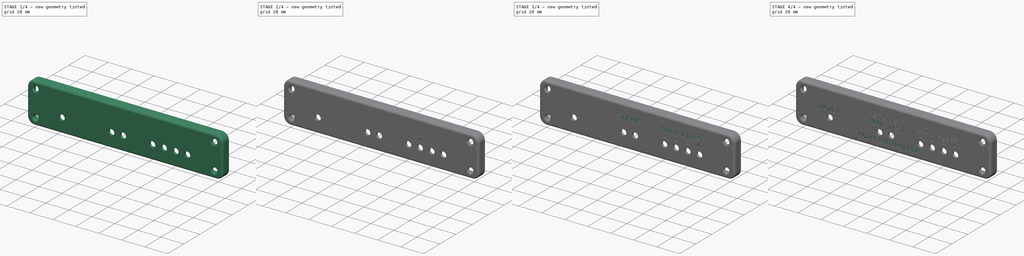
[diagram: build sequence overview — one tinted view per stage of 4, left to right]
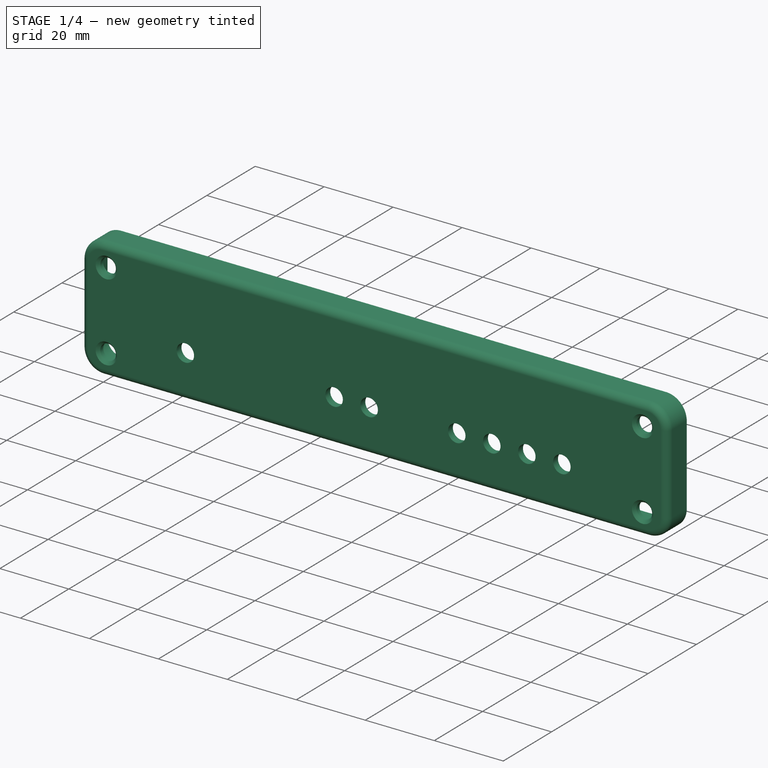
[diagram: stage 1 of 4 — iso view after this stage's code; geometry added in this stage tinted green]
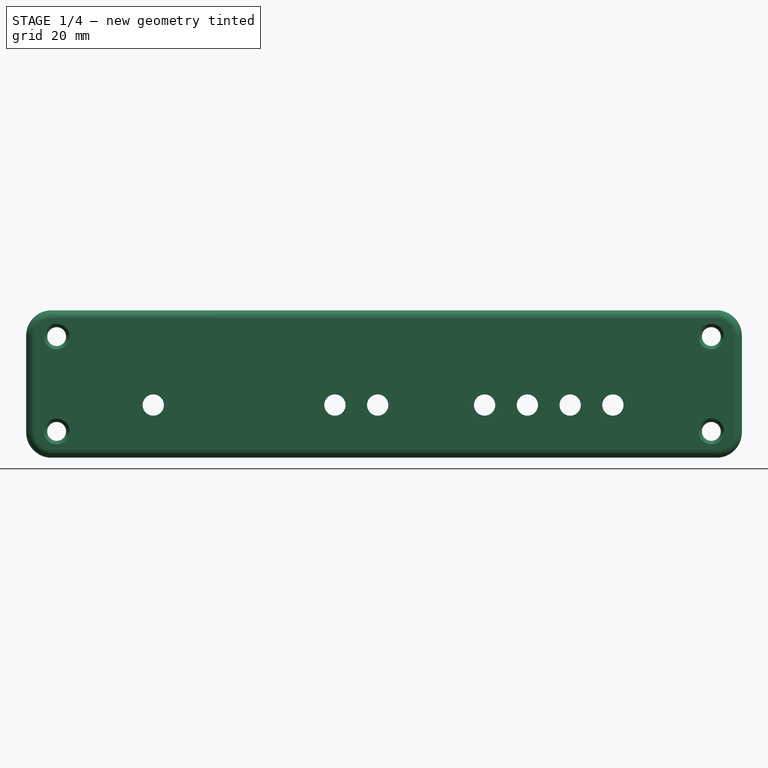
[diagram: stage 1 of 4 — front view after this stage's code; geometry added in this stage tinted green]
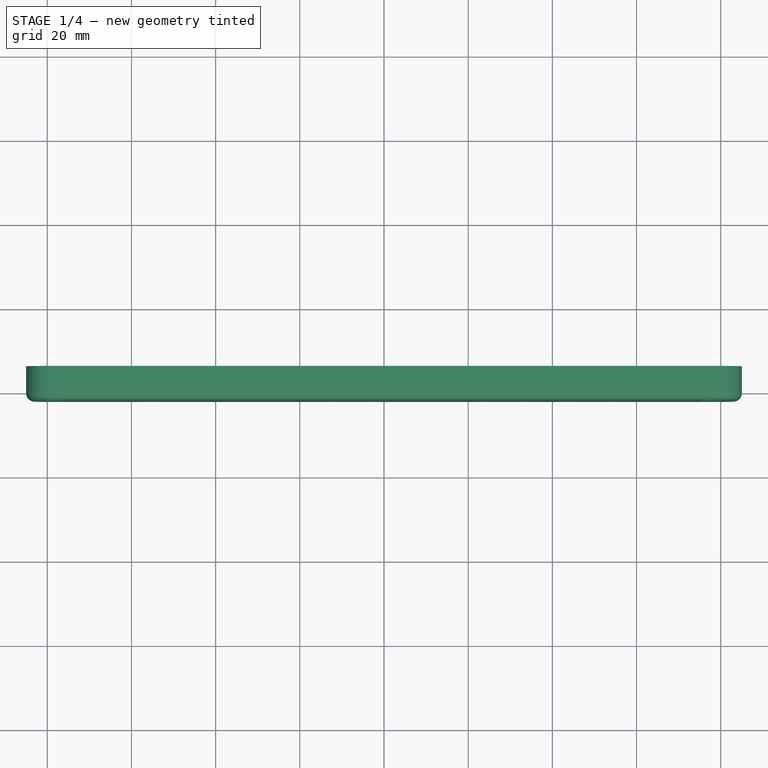
[diagram: stage 1 of 4 — top view after this stage's code; geometry added in this stage tinted green]
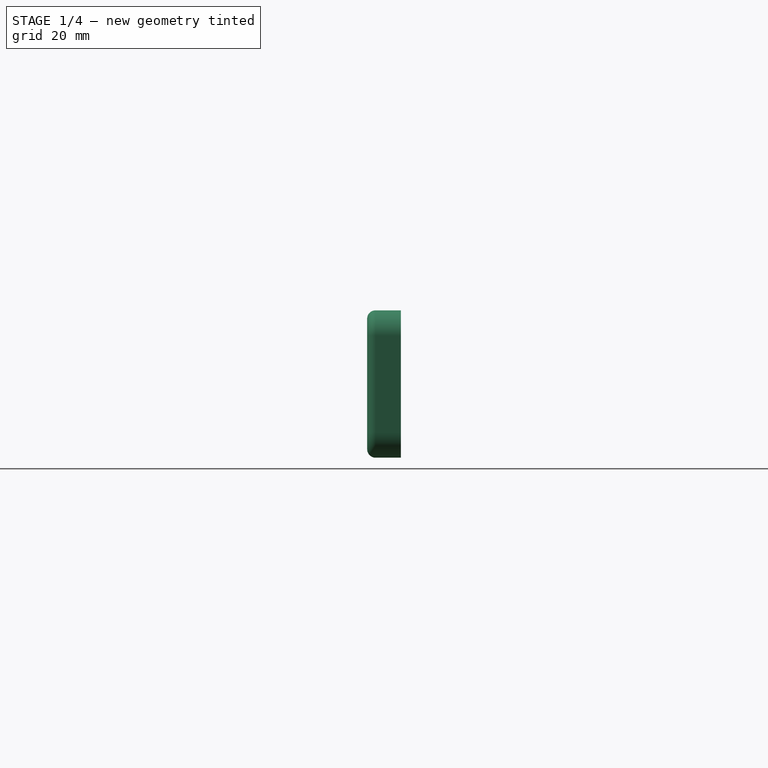
[diagram: stage 1 of 4 — right view after this stage's code; geometry added in this stage tinted green]
FCSTD DOCUMENT  (FreeCAD 0.21R33771 (Git))
Label: Hammond_160mm_Extrusion_Front_Panel
License: All rights reserved
LicenseURL: http://en.wikipedia.org/wiki/All_rights_reserved
objects: PartDesign::Pocket×11, Part::Part2DObjectPython×10, Sketcher::SketchObject×3, PartDesign::Pad×1, PartDesign::Thickness×1, PartDesign::Hole×1, PartDesign::Body×1
note: 42 computed .brp shape members not serialized (recipe doc carries the construction recipe); baked Part::Feature solids carry a one-line shape summary decoded from their .brp

FEATURE [Sketcher::SketchObject] Sketch  label="EndPanelSketch"
  FullyConstrained = true
  MapMode = 5
  Placement = pos=(0,0,0) rot=(1,0,0;1.5708rad)
  Support = -> [XZ_Plane]
  sketch-geometry (10):
    g0: ArcOfCircle CenterX=-79 CenterY=11.5 CenterZ=0 NormalX=0 NormalY=0 NormalZ=1 AngleXU=0 Radius=4 StartAngle=1.5708 EndAngle=3.14159
    g1: LineSegment StartX=-79 StartY=15.5 StartZ=0 EndX=79 EndY=15.5 EndZ=0
    g2: ArcOfCircle CenterX=79 CenterY=11.5 CenterZ=0 NormalX=0 NormalY=0 NormalZ=1 AngleXU=0 Radius=4 StartAngle=2.1e-14 EndAngle=1.5708
    g3: LineSegment StartX=83 StartY=11.5 StartZ=0 EndX=83 EndY=-11.5 EndZ=0
    g4: ArcOfCircle CenterX=79 CenterY=-11.5 CenterZ=0 NormalX=0 NormalY=0 NormalZ=1 AngleXU=0 Radius=4 StartAngle=4.71239 EndAngle=6.28319
    g5: LineSegment StartX=79 StartY=-15.5 StartZ=0 EndX=-79 EndY=-15.5 EndZ=0
    g6: ArcOfCircle CenterX=-79 CenterY=-11.5 CenterZ=0 NormalX=0 NormalY=0 NormalZ=1 AngleXU=0 Radius=4 StartAngle=3.14159 EndAngle=4.71239
    g7: LineSegment StartX=-83 StartY=-11.5 StartZ=0 EndX=-83 EndY=11.5 EndZ=0
    g8: GeomPoint X=-83 Y=15.5 Z=0
    g9: GeomPoint X=83 Y=-15.5 Z=0
  constraints (23):
    c: Tangent(g0,g1) = 1.5708
    c: Tangent(g1,g2) = 1.5708
    c: Tangent(g2,g3) = 1.5708
    c: Tangent(g3,g4) = 1.5708
    c: Tangent(g4,g5) = 1.5708
    c: Tangent(g5,g6) = 1.5708
    c: Tangent(g6,g7) = 1.5708
    c: Tangent(g7,g0) = 1.5708
    c: Horizontal(g1)
    c: Horizontal(g5)
    c: Vertical(g3)
    c: Vertical(g7)
    c: Equal(g0,g2)
    c: Equal(g2,g4)
    c: Equal(g4,g6)
    c: PointOnObject(g8,g1)
    c: PointOnObject(g8,g7)
    c: PointOnObject(g9,g3)
    c: PointOnObject(g9,g5)
    c: Symmetric(g4,g0,g-1)
    c: DistanceX(g0,g2) = 166
    c: DistanceY(g5,g0) = 31
    c: Radius(g0) = 4
FEATURE [PartDesign::Pad] Pad  label="EndPanelPad"
  Direction = (0,-1,-2e-16)
  Length = 6
  Length2 = 10
  Placement = pos=(0,0,0) rot=(1,0,0;1.5708rad)
  Profile = -> Sketch
  ReferenceAxis = -> Sketch [N_Axis]
  Reversed = true
  Type = 0
FEATURE [PartDesign::Thickness] Thickness
  Base = -> Pad [Face10]
  BaseFeature = -> Pad
  Intersection = false
  Join = 0
  Mode = 0
  SupportTransform = false
  Value = 2
FEATURE [Sketcher::SketchObject] Sketch001  label="LEDHolesSketch"
  FullyConstrained = false
  MapMode = 5
  Placement = pos=(0,-2,-4e-16) rot=(1,0,0;1.5708rad)
  Support = -> [Thickness]
  sketch-geometry (8):
    g0: Circle CenterX=-1.5 CenterY=-5 CenterZ=0 NormalX=0 NormalY=0 NormalZ=1 AngleXU=0 Radius=2.525
    g1: Circle CenterX=-11.66 CenterY=-5 CenterZ=0 NormalX=0 NormalY=0 NormalZ=1 AngleXU=0 Radius=2.525
    g2: Circle CenterX=-54.81 CenterY=-5 CenterZ=0 NormalX=0 NormalY=0 NormalZ=1 AngleXU=0 Radius=2.525
    g3: Circle CenterX=23.9 CenterY=-5 CenterZ=0 NormalX=0 NormalY=0 NormalZ=1 AngleXU=0 Radius=2.525
    g4: Circle CenterX=54.38 CenterY=-5 CenterZ=0 NormalX=0 NormalY=0 NormalZ=1 AngleXU=0 Radius=2.525
    g5: Circle CenterX=34.06 CenterY=-5 CenterZ=0 NormalX=0 NormalY=0 NormalZ=1 AngleXU=0 Radius=2.525
    g6: Circle CenterX=44.22 CenterY=-5 CenterZ=0 NormalX=0 NormalY=0 NormalZ=1 AngleXU=0 Radius=2.525
    g7: LineSegment StartX=-54.81 StartY=-5 StartZ=0 EndX=54.38 EndY=-5 EndZ=0
  constraints (23):
    c: Diameter(g0) = 5.05
    c: DistanceX(g0,g-1) = 1.5
    c: Equal(g1,g0)
    c: DistanceX(g1,g0) = 10.16
    c: Equal(g2,g0)
    c: Equal(g3,g4)
    c: Equal(g4,g5)
    c: Equal(g5,g6)
    c: Equal(g6,g0)
    c: DistanceX(g0,g3) = 25.4
    c: DistanceX(g3,g5) = 10.16
    c: DistanceX(g6,g4) = 10.16
    c: DistanceX(g5,g6) = 10.16
    c: DistanceX(g2,g1) = 43.15
    c: DistanceY(g1,g-1) = 5
    c: Coincident(g7,g2)
    c: Horizontal(g7)
    c: PointOnObject(g4,g7)
    c: PointOnObject(g6,g7)
    c: PointOnObject(g5,g7)
    c: PointOnObject(g3,g7)
    c: PointOnObject(g0,g7)
    c: PointOnObject(g1,g7)
FEATURE [Sketcher::SketchObject] Sketch002  label="EndPanelHoleSketch"
  FullyConstrained = false
  MapMode = 5
  Placement = pos=(0,-2,-4e-16) rot=(1,0,0;1.5708rad)
  Support = -> [Thickness]
  sketch-geometry (8):
    g0: Circle CenterX=-77.76 CenterY=11.26 CenterZ=0 NormalX=0 NormalY=0 NormalZ=1 AngleXU=0 Radius=2.25
    g1: Circle CenterX=77.76 CenterY=11.26 CenterZ=0 NormalX=0 NormalY=0 NormalZ=1 AngleXU=0 Radius=2.25
    g2: LineSegment StartX=-77.76 StartY=11.26 StartZ=0 EndX=77.7549 EndY=11.26 EndZ=0
    g3: LineSegment StartX=77.7549 StartY=11.26 StartZ=0 EndX=77.7549 EndY=-11.26 EndZ=0
    g4: LineSegment StartX=77.7549 StartY=-11.26 StartZ=0 EndX=-77.76 EndY=-11.26 EndZ=0
    g5: LineSegment StartX=-77.76 StartY=-11.26 StartZ=0 EndX=-77.76 EndY=11.26 EndZ=0
    g6: Circle CenterX=-77.76 CenterY=-11.26 CenterZ=0 NormalX=0 NormalY=0 NormalZ=1 AngleXU=0 Radius=2.25
    g7: Circle CenterX=77.7549 CenterY=-11.26 CenterZ=0 NormalX=0 NormalY=0 NormalZ=1 AngleXU=0 Radius=2.25
  constraints (18):
    c: DistanceX(g0,g1) = 155.52
    c: Symmetric(g0,g1,g-2)
    c: Coincident(g2,g3)
    c: Coincident(g3,g4)
    c: Coincident(g4,g5)
    c: Coincident(g5,g2)
    c: Horizontal(g2)
    c: Horizontal(g4)
    c: Vertical(g3)
    c: Coincident(g2,g0)
    c: DistanceY(g4,g0) = 22.52
    c: Symmetric(g0,g4,g-1)
    c: Coincident(g6,g4)
    c: Coincident(g7,g3)
    c: Equal(g0,g6)
    c: Equal(g6,g7)
    c: Equal(g7,g1)
    c: Diameter(g0) = 4.5
FEATURE [PartDesign::Hole] Hole  label="EndPanelHoles"
  BaseFeature = -> Thickness
  CustomThreadClearance = 0
  Depth = 2
  DepthType = 0
  Diameter = 4.5
  DrillForDepth = false
  DrillPoint = 1
  DrillPointAngle = 118
  HoleCutCountersinkAngle = 90
  HoleCutCustomValues = false
  HoleCutDepth = 0
  HoleCutDiameter = 6.1
  HoleCutType = 2
  ModelThread = false
  Profile = -> Sketch002
  Tapered = false
  TaperedAngle = 90
  ThreadClass = 0
  ThreadDepth = 2
  ThreadDepthType = 0
  ThreadDirection = 0
  ThreadFit = 0
  ThreadSize = 11
  ThreadType = 1
  Threaded = false
  UseCustomThreadClearance = false
FEATURE [PartDesign::Pocket] Pocket  label="LEDHolesPocket"
  BaseFeature = -> Hole
  Direction = (0,1,2e-16)
  Length = 5.05
  Length2 = 5
  Profile = -> Sketch001
  ReferenceAxis = -> Sketch001 [N_Axis]
  Type = 0
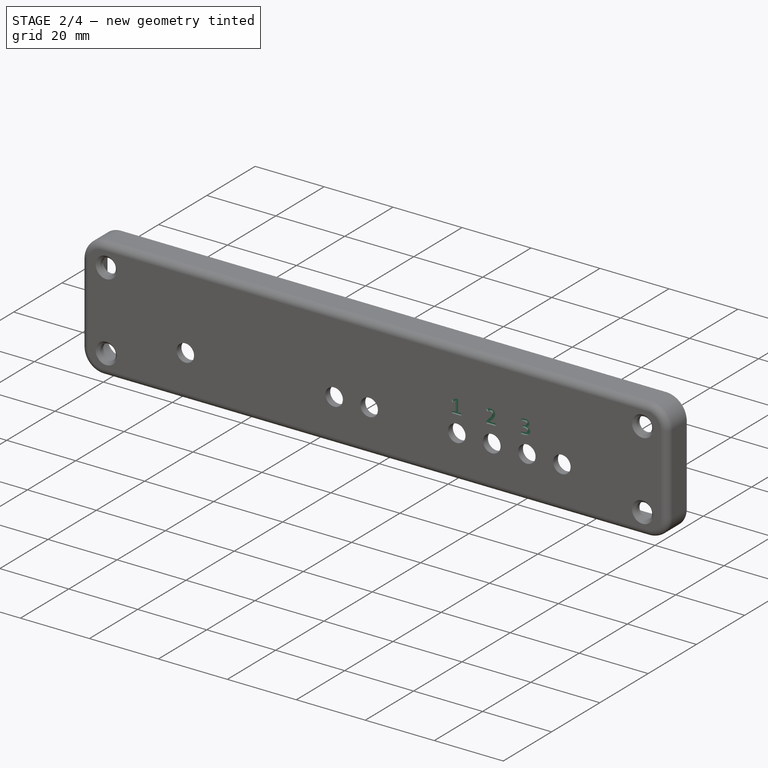
[diagram: stage 2 of 4 — iso view after this stage's code; geometry added in this stage tinted green]
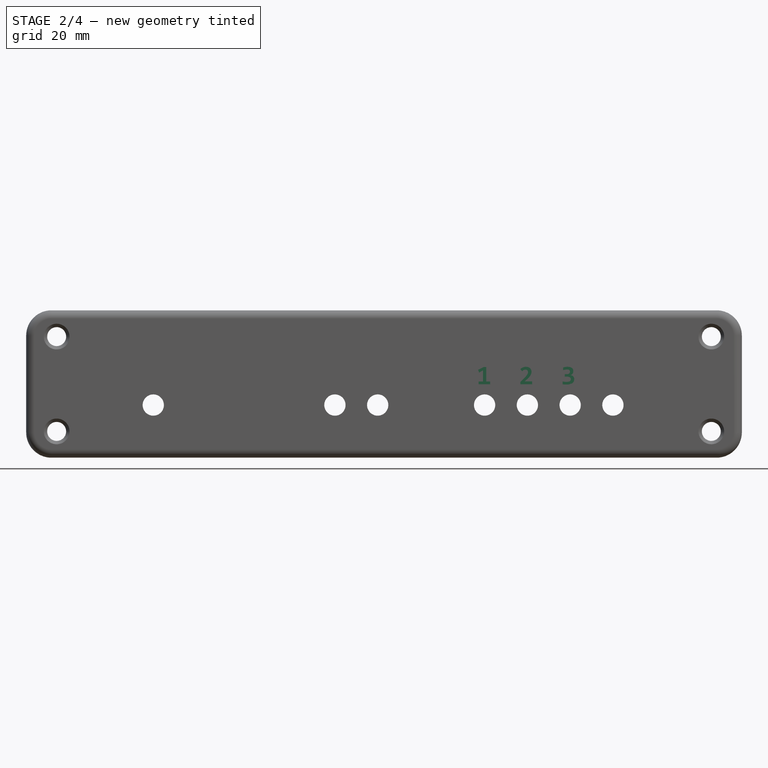
[diagram: stage 2 of 4 — front view after this stage's code; geometry added in this stage tinted green]
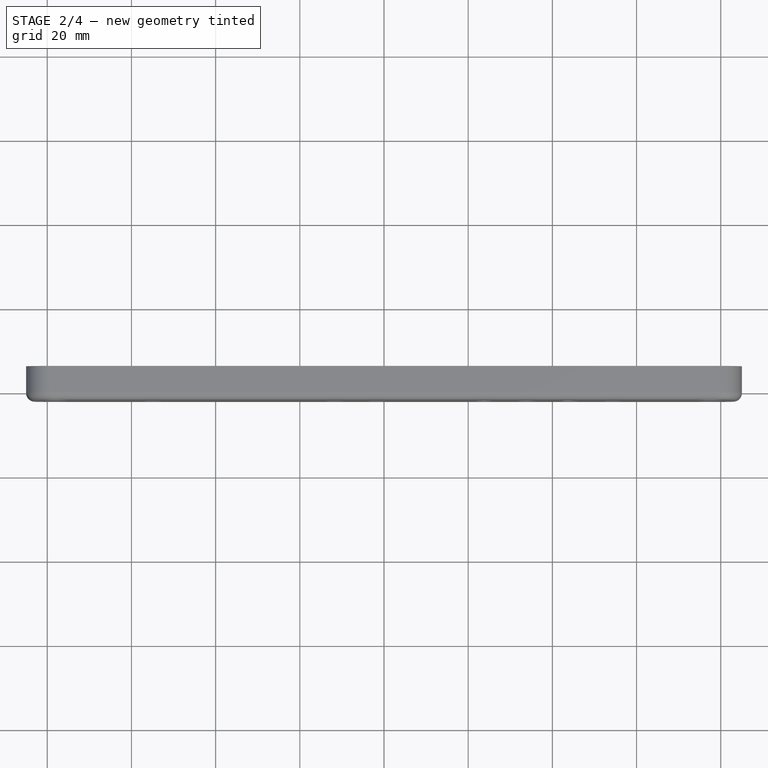
[diagram: stage 2 of 4 — top view after this stage's code; geometry added in this stage tinted green]
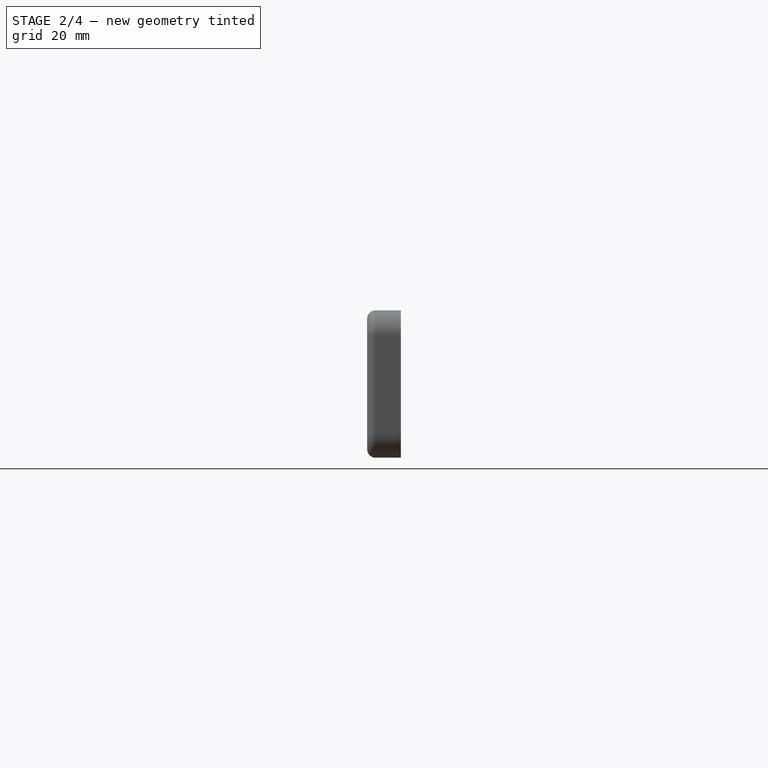
[diagram: stage 2 of 4 — right view after this stage's code; geometry added in this stage tinted green]
FEATURE [Part::Part2DObjectPython] ShapeString001  label="ShapeString3"  # Draft 2D object (typed FeaturePython)
  FontFile = <path>
  MakeFace = true
  Placement = pos=(-17,-2,5) rot=(1,0,0;1.5708rad)
  Size = 5
  String = STATUS
  Tracking = 0
FEATURE [Part::Part2DObjectPython] ShapeString002  label="ShapeString1"  # Draft 2D object (typed FeaturePython)
  FontFile = <path>
  MakeFace = true
  Placement = pos=(-20.5,-2,-0.07) rot=(1,0,0;1.5708rad)
  Size = 5
  String = MCU
  Tracking = 0
FEATURE [Part::Part2DObjectPython] ShapeString003  label="ShapeString2"  # Draft 2D object (typed FeaturePython)
  FontFile = <path>
  MakeFace = true
  Placement = pos=(-4,-2,-0.07) rot=(1,0,0;1.5708rad)
  Size = 5
  String = TEST
  Tracking = 0
FEATURE [Part::Part2DObjectPython] ShapeString004  label="L1"  # Draft 2D object (typed FeaturePython)
  FontFile = <path>
  MakeFace = true
  Placement = pos=(22,-2,-0.07) rot=(1,0,0;1.5708rad)
  Size = 5
  String = 1
  Tracking = 0
FEATURE [Part::Part2DObjectPython] ShapeString005  label="L2"  # Draft 2D object (typed FeaturePython)
  FontFile = <path>
  MakeFace = true
  Placement = pos=(32,-2,-0.07) rot=(1,0,0;1.5708rad)
  Size = 5
  String = 2
  Tracking = 0
FEATURE [Part::Part2DObjectPython] ShapeString006  label="L3"  # Draft 2D object (typed FeaturePython)
  FontFile = <path>
  MakeFace = true
  Placement = pos=(42,-2,-0.07) rot=(1,0,0;1.5708rad)
  Size = 5
  String = 3
  Tracking = 0
FEATURE [Part::Part2DObjectPython] ShapeString007  label="L4"  # Draft 2D object (typed FeaturePython)
  FontFile = <path>
  MakeFace = true
  Placement = pos=(52,-2,-0.07) rot=(1,0,0;1.5708rad)
  Size = 5
  String = 4
  Tracking = 0
FEATURE [Part::Part2DObjectPython] ShapeString008  label="ShapeString4"  # Draft 2D object (typed FeaturePython)
  FontFile = <path>
  MakeFace = true
  Placement = pos=(21,-2,5) rot=(1,0,0;1.5708rad)
  Size = 5
  String = COIN LINES
  Tracking = 0
FEATURE [PartDesign::Pocket] Pocket001
  BaseFeature = -> Pocket
  Direction = (0,1,-2e-16)
  Length = 0.5
  Length2 = 5
  Profile = -> ShapeString004
  ReferenceAxis = -> ShapeString004 [N_Axis]
  Type = 0
FEATURE [PartDesign::Pocket] Pocket002
  BaseFeature = -> Pocket001
  Direction = (0,1,-2e-16)
  Length = 0.5
  Length2 = 5
  Profile = -> ShapeString006
  ReferenceAxis = -> ShapeString006 [N_Axis]
  Type = 0
FEATURE [PartDesign::Pocket] Pocket003
  BaseFeature = -> Pocket002
  Direction = (0,1,-2e-16)
  Length = 0.5
  Length2 = 5
  Profile = -> ShapeString005
  ReferenceAxis = -> ShapeString005 [N_Axis]
  Type = 0
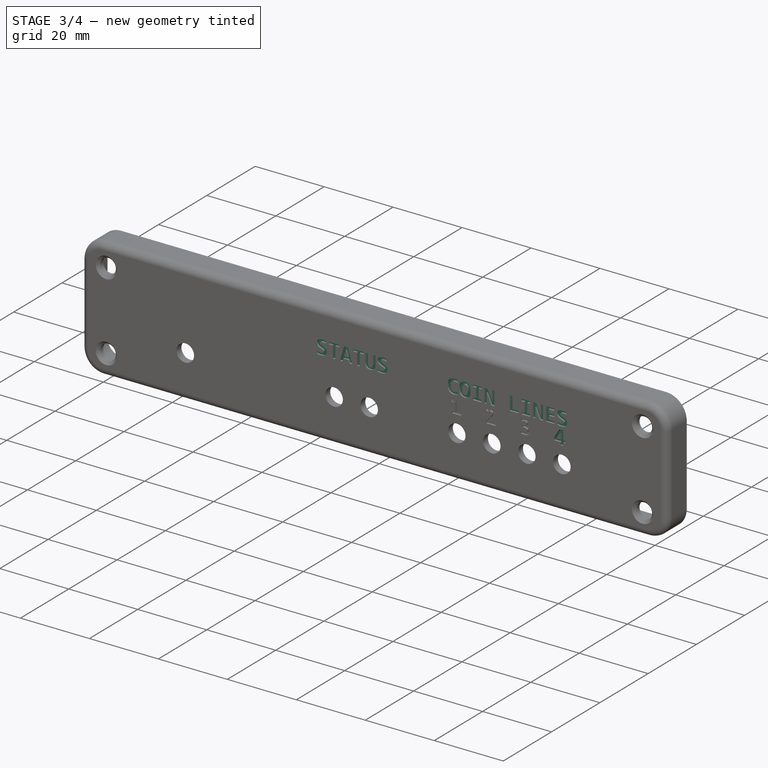
[diagram: stage 3 of 4 — iso view after this stage's code; geometry added in this stage tinted green]
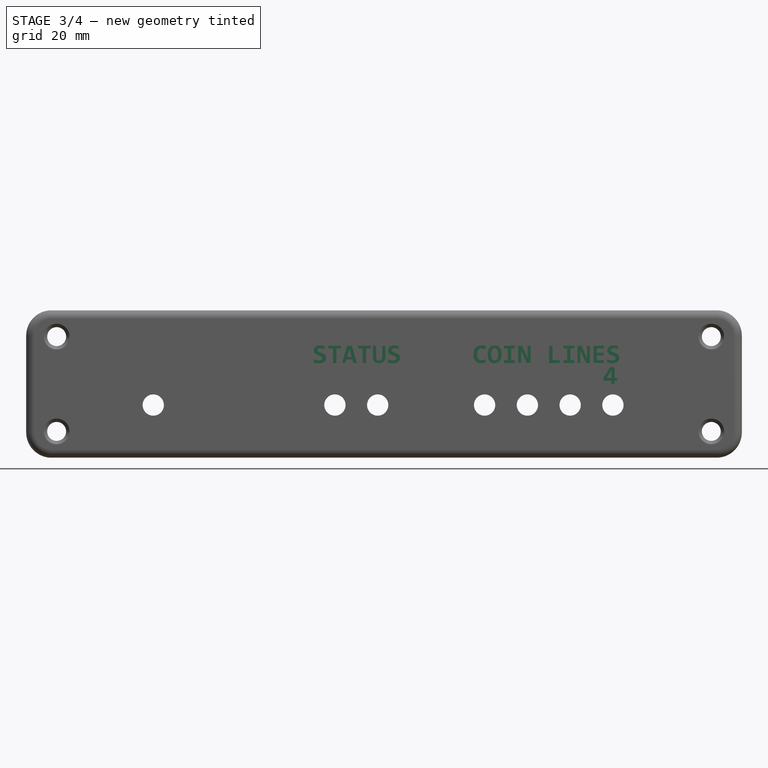
[diagram: stage 3 of 4 — front view after this stage's code; geometry added in this stage tinted green]
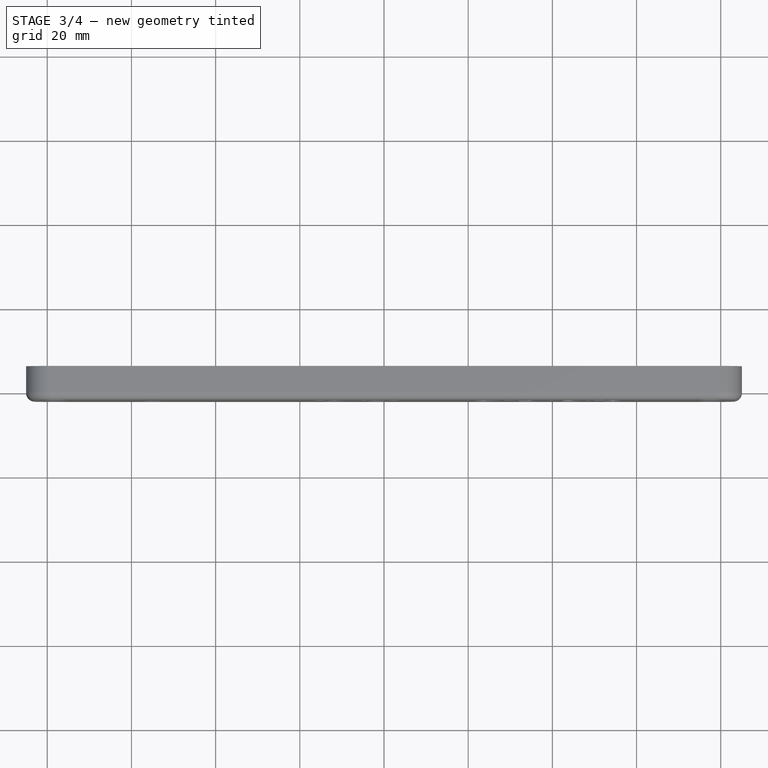
[diagram: stage 3 of 4 — top view after this stage's code; geometry added in this stage tinted green]
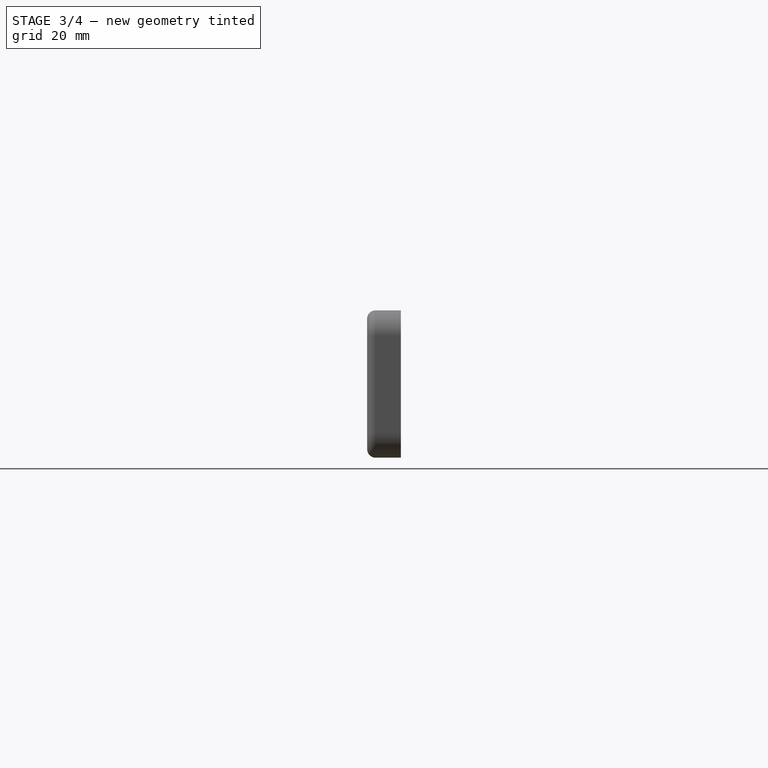
[diagram: stage 3 of 4 — right view after this stage's code; geometry added in this stage tinted green]
FEATURE [PartDesign::Pocket] Pocket004
  BaseFeature = -> Pocket003
  Direction = (0,1,-2e-16)
  Length = 0.5
  Length2 = 5
  Profile = -> ShapeString007
  ReferenceAxis = -> ShapeString007 [N_Axis]
  Type = 0
FEATURE [PartDesign::Pocket] Pocket005
  BaseFeature = -> Pocket004
  Direction = (0,1,-2e-16)
  Length = 0.5
  Length2 = 5
  Profile = -> ShapeString008
  ReferenceAxis = -> ShapeString008 [N_Axis]
  Type = 0
FEATURE [PartDesign::Pocket] Pocket006
  BaseFeature = -> Pocket005
  Direction = (0,1,-2e-16)
  Length = 0.5
  Length2 = 5
  Profile = -> ShapeString001
  ReferenceAxis = -> ShapeString001 [N_Axis]
  Type = 0
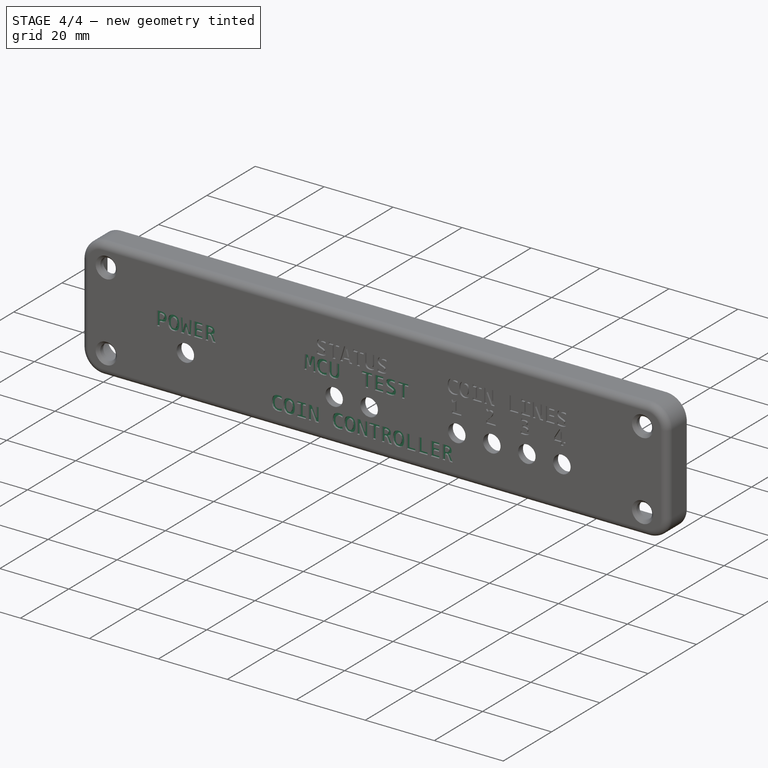
[diagram: stage 4 of 4 — iso view after this stage's code; geometry added in this stage tinted green]
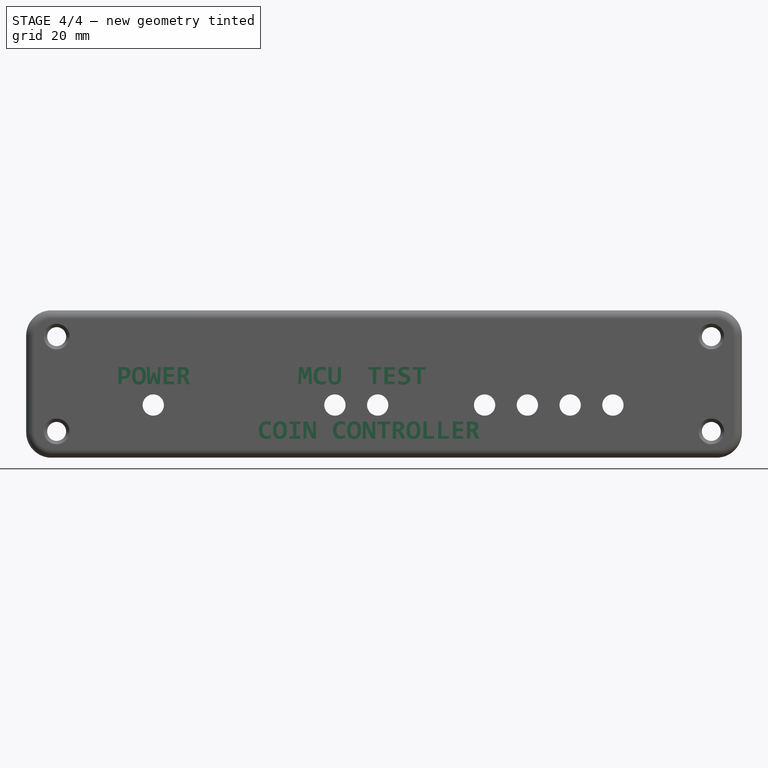
[diagram: stage 4 of 4 — front view after this stage's code; geometry added in this stage tinted green]
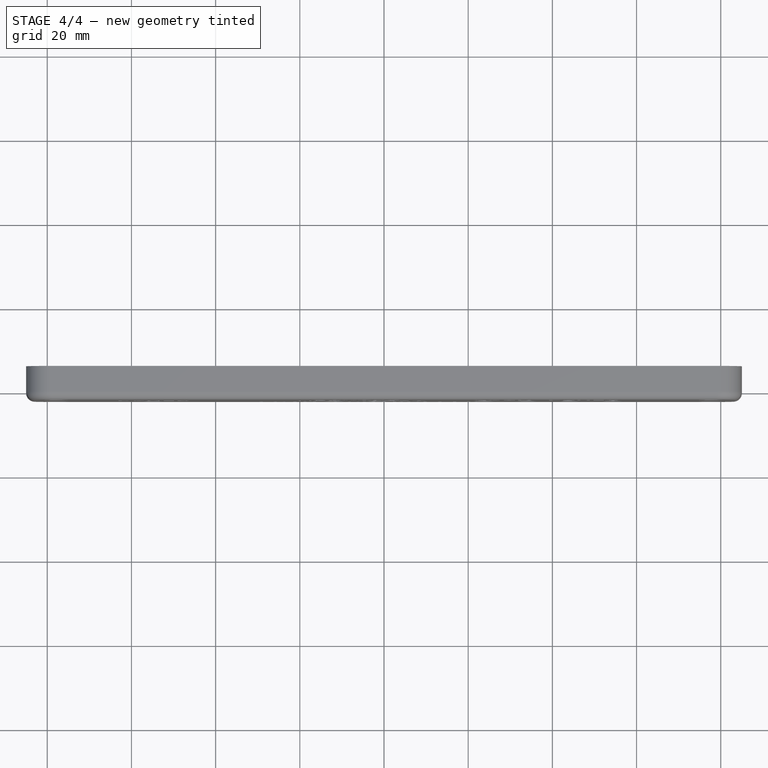
[diagram: stage 4 of 4 — top view after this stage's code; geometry added in this stage tinted green]
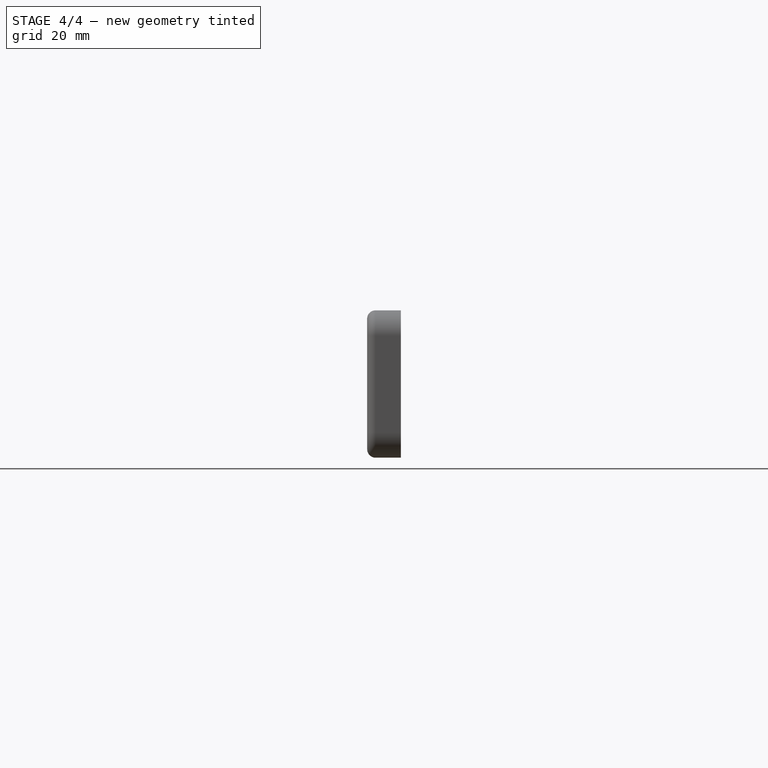
[diagram: stage 4 of 4 — right view after this stage's code; geometry added in this stage tinted green]
FEATURE [PartDesign::Pocket] Pocket007
  BaseFeature = -> Pocket006
  Direction = (0,1,-2e-16)
  Length = 0.5
  Length2 = 5
  Profile = -> ShapeString002
  ReferenceAxis = -> ShapeString002 [N_Axis]
  Type = 0
FEATURE [PartDesign::Pocket] Pocket008
  BaseFeature = -> Pocket007
  Direction = (0,1,-2e-16)
  Length = 0.5
  Length2 = 5
  Profile = -> ShapeString003
  ReferenceAxis = -> ShapeString003 [N_Axis]
  Type = 0
FEATURE [Part::Part2DObjectPython] ShapeString009  # Draft 2D object (typed FeaturePython)
  FontFile = <path>
  MakeFace = true
  Placement = pos=(-63.5,-2,-0.07) rot=(1,0,0;1.5708rad)
  Size = 5
  String = POWER
  Tracking = 0
FEATURE [PartDesign::Pocket] Pocket009
  BaseFeature = -> Pocket008
  Direction = (0,1,-2e-16)
  Length = 0.5
  Length2 = 5
  Profile = -> ShapeString009
  ReferenceAxis = -> ShapeString009 [N_Axis]
  Type = 0
FEATURE [Part::Part2DObjectPython] ShapeString010  # Draft 2D object (typed FeaturePython)
  FontFile = <path>
  MakeFace = true
  Placement = pos=(-30,-2,-13) rot=(1,0,0;1.5708rad)
  Size = 5
  String = COIN CONTROLLER
  Tracking = 0
FEATURE [PartDesign::Pocket] Pocket010
  BaseFeature = -> Pocket009
  Direction = (0,1,-2e-16)
  Length = 0.5
  Length2 = 5
  Profile = -> ShapeString010
  ReferenceAxis = -> ShapeString010 [N_Axis]
  Type = 0
FEATURE [PartDesign::Body] Body
  Group = -> [Sketch,Pad,Thickness,Sketch002,Sketch001,Hole,Pocket,ShapeString001,ShapeString002,ShapeString003,ShapeString004,ShapeString006,ShapeString007,ShapeString008,ShapeString005,Pocket001,Pocket002,Pocket003,Pocket004,Pocket005,Pocket006,Pocket007,Pocket008,ShapeString009,Pocket009,ShapeString010,Pocket010]
  Origin = -> Origin
  Tip = -> Pocket010
note: 10 file-system paths scrubbed to <path> (originals preserved in the JSON sidecar)
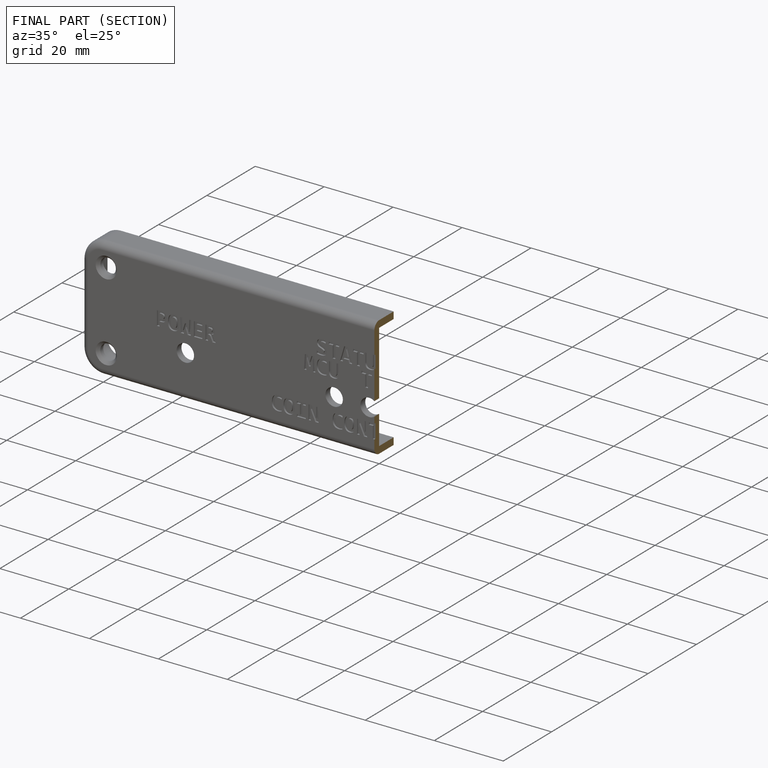
[diagram: finished part — half-section view (interior)]
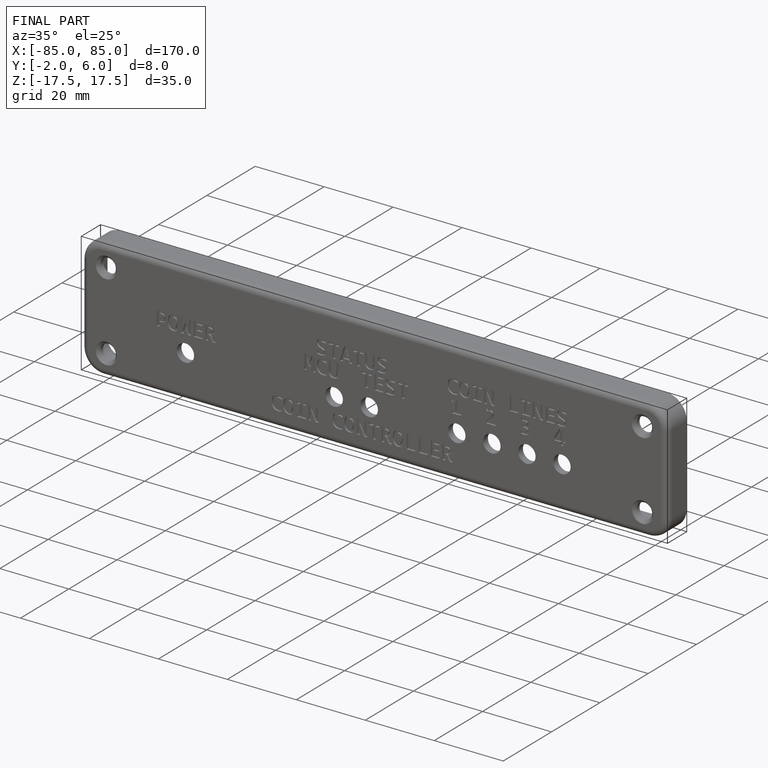
[diagram: finished part — iso view with bounding-box wireframe]
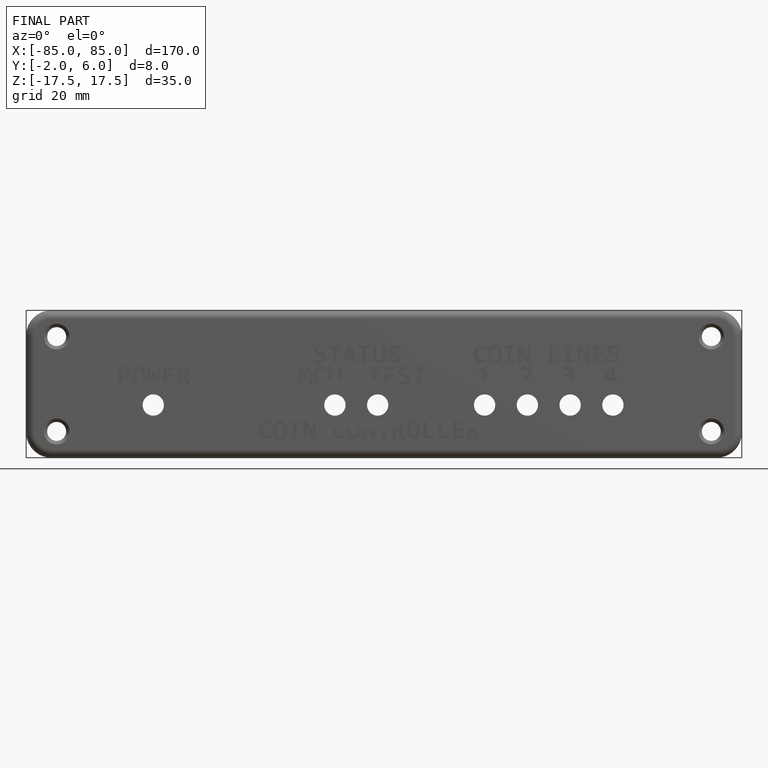
[diagram: finished part — front view with bounding-box wireframe]
